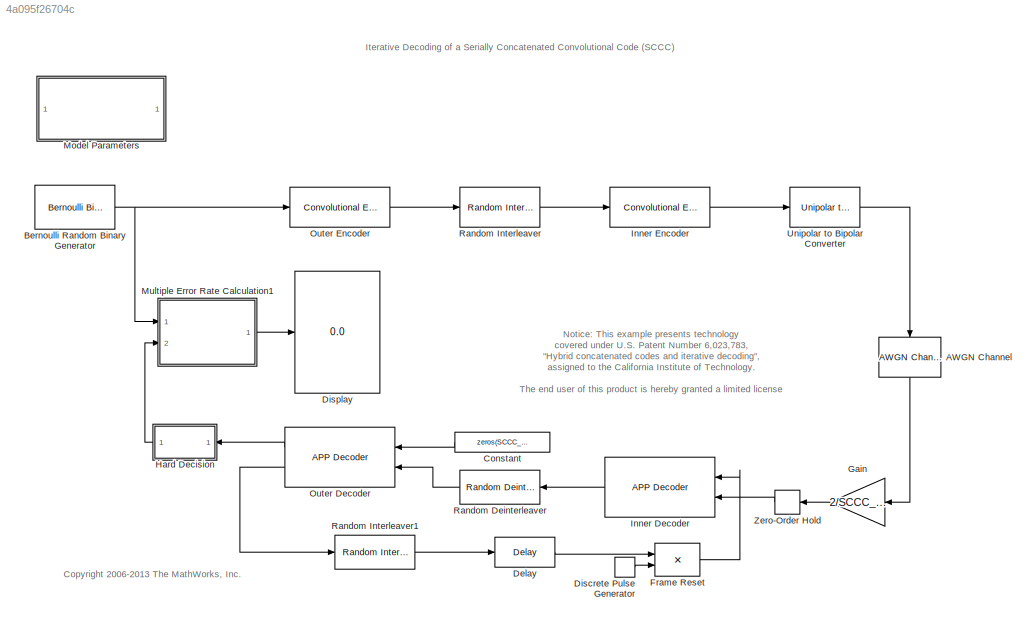
MODEL slx_4a095f26704c
KIND model
CONFIG PostLoadFcn = commsccc_setup;
BLOCK [Reference] AWGN Channel  REF=commchan3/AWGN
Channel
  EbNodB = 10
  EsNodB = 0
  InputProcessing = Columns as channels (frame based)
  Ports = [1, 1]
  Ps = 1
  SNRdB = 10
  SourceBlock = commchan3/AWGN\nChannel
  SourceType = AWGN Channel
  Tsym = 1/len/3
  UserDataPersistent = on
  bitsPerSym = 1
  noiseMode = Variance from mask
  seed = 123449
  variance = SCCC_Var
BLOCK [Reference] Bernoulli Random Binary Generator  REF=commrandsrc2/Bernoulli Binary
Generator
  P = 0.5
  Ports = [0, 1]
  SourceBlock = commrandsrc2/Bernoulli Binary\nGenerator
  SourceType = Bernoulli Binary Generator
  Ts = SCCC_numIter/SCCC_len
  frameBased = on
  orient = off
  outDataType = boolean
  sampPerFrame = SCCC_len
  seed = 12343
BLOCK [Constant] Constant
  FramePeriod = 1
  SamplingMode = Frame based
  Value = zeros(SCCC_len,1)
  VectorParams1D = off
BLOCK [Reference] Delay  REF=dspsigops/Delay
  InputProcessing = Columns as channels (frame based)
  Ports = [1, 1]
  SourceBlock = dspsigops/Delay
  SourceType = Delay
  UserDataPersistent = on
  delay = SCCC_len*2
  dif_ic_for_ch = off
  dif_ic_for_dly = off
  dly_unit = Samples
  ic = 0
  ic_detail = off
  reset_popup = None
BLOCK [DiscretePulseGenerator] Discrete Pulse Generator
  Period = SCCC_numIter
  PhaseDelay = 1
  Ports = [0, 1]
  PulseWidth = SCCC_numIter-1
BLOCK [Display] Display
  Decimation = 1
  Ports = [1]
BLOCK [Product] Frame Reset
  Ports = [2, 1]
  RndMeth = Floor
BLOCK [Gain] Gain
  Gain = 2/SCCC_Var
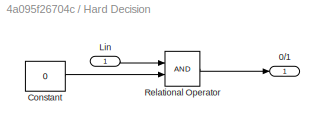
BLOCK [SubSystem] Hard Decision
  Ports = [1, 1]
  RequestExecContextInheritance = off
BLOCK [Outport] Hard Decision/0//1
  IconDisplay = Port number
BLOCK [Constant] Hard Decision/Constant
  Value = 0
BLOCK [Inport] Hard Decision/Lin
  IconDisplay = Port number
BLOCK [RelationalOperator] Hard Decision/Relational Operator
  Ports = [2, 1]
BLOCK [Reference] Inner Decoder  REF=commcnvcod2/APP Decoder
  Ports = [2, 1]
  SourceBlock = commcnvcod2/APP Decoder
  SourceType = APP Decoder
  algorithm = Max*
  disableLcOut = on
  maxStarNumScaleBits = 3
  termMethod = Truncated
  trellis = poly2trellis([3 3],[7 0 5;0 7 6],[7 7])
BLOCK [Reference] Inner Encoder  REF=commcnvcod2/Convolutional
Encoder
  DelayedResetAction = off
  Ports = [1, 1]
  SourceBlock = commcnvcod2/Convolutional\nEncoder
  SourceType = Convolutional Encoder
  hasFinStPort = off
  hasIniStPort = off
  opMode = Truncated (reset every frame)
  punctureVector = [1; 1; 0; 1; 0; 1]
  reset = Unused parameter value
  trellis = poly2trellis([3 3],[7 0 5;0 7 6],[7 7])
  usePuncVector = off
BLOCK [SubSystem] Model Parameters
  Ports = []
  RequestExecContextInheritance = off
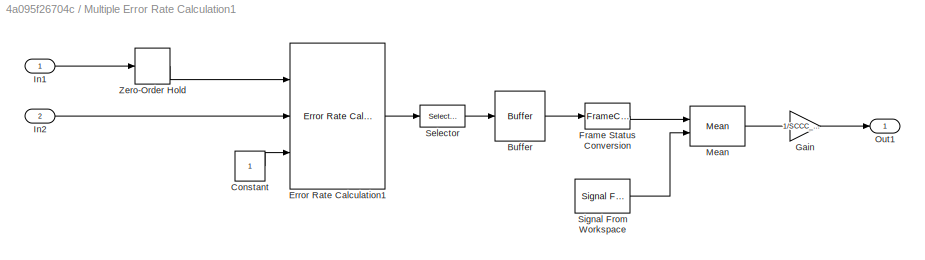
BLOCK [SubSystem] Multiple Error Rate Calculation1
  Ports = [2, 1]
  RequestExecContextInheritance = off
BLOCK [Buffer] Multiple Error Rate Calculation1/Buffer
  N = SCCC_numIter
  TreatMby1Signals = One channel
BLOCK [Constant] Multiple Error Rate Calculation1/Constant
BLOCK [Reference] Multiple Error Rate Calculation1/Error Rate Calculation1  REF=commsink2/Error Rate
Calculation
  N = 0
  PMode = Port
  Ports = [3, 1]
  RsMode2 = on
  SourceBlock = commsink2/Error Rate\nCalculation
  SourceType = Error Rate Calculation
  WsName = ErrorVec1
  cp_mode = Entire frame
  maxBits = 1e6
  numErr = 100
  st_delay = 0
  stop = off
  subframe = []
BLOCK [FrameConversion] Multiple Error Rate Calculation1/Frame Status Conversion
  OutFrame = Sample-based
  Ports = [1, 1]
BLOCK [Gain] Multiple Error Rate Calculation1/Gain
  Gain = 1/SCCC_len
BLOCK [Inport] Multiple Error Rate Calculation1/In1
  IconDisplay = Port number
BLOCK [Inport] Multiple Error Rate Calculation1/In2
  IconDisplay = Port number
  Port = 2
BLOCK [Reference] Multiple Error Rate Calculation1/Mean  REF=dspstat3/Mean
  InputProcessing = Elements as channels (sample based)
  LockScale = off
  Ports = [2, 1]
  SourceBlock = dspstat3/Mean
  SourceType = Mean
  UserDataPersistent = on
  accumDataTypeStr = Inherit: Same as input
  accumFracLength = 30
  accumLastDataTypeStr = Inherit: Same as input
  accumMode = Same as input
  accumWordLength = 32
  additionalParams = off
  allowOverrides = on
  dimension = 1
  directionMode = Each column
  outputDataTypeStr = Inherit: Same as accumulator
  outputFracLength = 30
  outputLastDataTypeStr = Inherit: Same as accumulator
  outputMax = []
  outputMin = []
  outputMode = Same as accumulator
  outputWordLength = 32
  overflowMode = off
  reset_popup = Non-zero sample
  roiEnable = off
  roiFlag = off
  roiOutput = Individual statistics for each ROI
  roiPortion = Entire ROI
  roiType = Rectangles
  roundingMode = Floor
  run = on
  treatSBRowAsCol = on
BLOCK [Outport] Multiple Error Rate Calculation1/Out1
  IconDisplay = Port number
BLOCK [Selector] Multiple Error Rate Calculation1/Selector
  Indices = 2
  InputPortWidth = 3
  Ports = [1, 1]
BLOCK [Reference] Multiple Error Rate Calculation1/Signal From Workspace  REF=dspsrcs4/Signal From
Workspace
  OutputAfterFinalValue = Setting to zero
  Ports = [0, 1]
  SourceBlock = dspsrcs4/Signal From\nWorkspace
  SourceType = Signal From Workspace
  Ts = SCCC_numIter
  X = [1 1]
  ignoreOrWarnInputAndFrameLengths = off
  nsamps = 1
BLOCK [ZeroOrderHold] Multiple Error Rate Calculation1/Zero-Order Hold
BLOCK [Reference] Outer Decoder  REF=commcnvcod2/APP Decoder
  Ports = [2, 2]
  SourceBlock = commcnvcod2/APP Decoder
  SourceType = APP Decoder
  algorithm = Max*
  disableLcOut = off
  maxStarNumScaleBits = 3
  termMethod = Truncated
  trellis = poly2trellis(3, [7 5],7)
BLOCK [Reference] Outer Encoder  REF=commcnvcod2/Convolutional
Encoder
  DelayedResetAction = off
  Ports = [1, 1]
  SourceBlock = commcnvcod2/Convolutional\nEncoder
  SourceType = Convolutional Encoder
  hasFinStPort = off
  hasIniStPort = off
  opMode = Truncated (reset every frame)
  punctureVector = [1; 1; 0; 1; 0; 1]
  reset = Unused parameter value
  trellis = poly2trellis(3, [7 5],7)
  usePuncVector = off
BLOCK [Reference] Random Deinterleaver  REF=commblkintrlv2/Random
Deinterleaver
  N = SCCC_len*2
  Ports = [1, 1]
  SourceBlock = commblkintrlv2/Random\nDeinterleaver
  SourceType = Random Deinterleaver
  seed = SCCC_seed
BLOCK [Reference] Random Interleaver  REF=commblkintrlv2/Random
Interleaver
  N = SCCC_len*2
  Ports = [1, 1]
  SourceBlock = commblkintrlv2/Random\nInterleaver
  SourceType = Random Interleaver
  seed = SCCC_seed
BLOCK [Reference] Random Interleaver1  REF=commblkintrlv2/Random
Interleaver
  N = SCCC_len*2
  Ports = [1, 1]
  SourceBlock = commblkintrlv2/Random\nInterleaver
  SourceType = Random Interleaver
  seed = SCCC_seed
BLOCK [Reference] Unipolar to Bipolar Converter  REF=commutil2/Unipolar to
Bipolar
Converter
  M = 2
  Ports = [1, 1]
  SourceBlock = commutil2/Unipolar to\nBipolar\nConverter
  SourceType = Unipolar to Bipolar Converter
  dataType = double
  polarity = Positive
BLOCK [ZeroOrderHold] Zero-Order Hold
  SampleTime = SCCC_numIter
ANNOTATION (root): <copyright redacted>
ANNOTATION (root): Iterative Decoding of a Serially Concatenated Convolutional Code (SCCC)
ANNOTATION (root): Notice: This example presents technology covered under U.S. Patent Number 6,023,783, "Hybrid concatenated codes and iterative decoding", assigned to the California Institute of Technology. The end user of this product is hereby granted a limited license to use this example solely for the purpose of assessing possible commercial and educational applications of the technology. Any other use or modif...<+80ch>
LINE AWGN Channel:1 -> Gain:1
NET Bernoulli Random Binary Generator:1 -> Multiple Error Rate Calculation1:1, Outer Encoder:1
LINE Constant:1 -> Outer Decoder:1
LINE Delay:1 -> Frame Reset:1
LINE Discrete Pulse Generator:1 -> Frame Reset:2
LINE Frame Reset:1 -> Inner Decoder:1
LINE Gain:1 -> Zero-Order Hold:1
LINE Hard Decision/Constant:1 -> Hard Decision/Relational Operator:2
LINE Hard Decision/Lin:1 -> Hard Decision/Relational Operator:1
LINE Hard Decision/Relational Operator:1 -> Hard Decision/0//1:1
LINE Hard Decision:1 -> Multiple Error Rate Calculation1:2
LINE Inner Decoder:1 -> Random Deinterleaver:1
LINE Inner Encoder:1 -> Unipolar to Bipolar Converter:1
LINE Multiple Error Rate Calculation1/Buffer:1 -> Multiple Error Rate Calculation1/Frame Status Conversion:1
LINE Multiple Error Rate Calculation1/Constant:1 -> Multiple Error Rate Calculation1/Error Rate Calculation1:3
LINE Multiple Error Rate Calculation1/Error Rate Calculation1:1 -> Multiple Error Rate Calculation1/Selector:1
LINE Multiple Error Rate Calculation1/Frame Status Conversion:1 -> Multiple Error Rate Calculation1/Mean:1
LINE Multiple Error Rate Calculation1/Gain:1 -> Multiple Error Rate Calculation1/Out1:1
LINE Multiple Error Rate Calculation1/In1:1 -> Multiple Error Rate Calculation1/Zero-Order Hold:1
LINE Multiple Error Rate Calculation1/In2:1 -> Multiple Error Rate Calculation1/Error Rate Calculation1:2
LINE Multiple Error Rate Calculation1/Mean:1 -> Multiple Error Rate Calculation1/Gain:1
LINE Multiple Error Rate Calculation1/Selector:1 -> Multiple Error Rate Calculation1/Buffer:1
LINE Multiple Error Rate Calculation1/Signal From Workspace:1 -> Multiple Error Rate Calculation1/Mean:2
LINE Multiple Error Rate Calculation1/Zero-Order Hold:1 -> Multiple Error Rate Calculation1/Error Rate Calculation1:1
LINE Multiple Error Rate Calculation1:1 -> Display:1
LINE Outer Decoder:1 -> Hard Decision:1
LINE Outer Decoder:2 -> Random Interleaver1:1
LINE Outer Encoder:1 -> Random Interleaver:1
LINE Random Deinterleaver:1 -> Outer Decoder:2
LINE Random Interleaver1:1 -> Delay:1
LINE Random Interleaver:1 -> Inner Encoder:1
LINE Unipolar to Bipolar Converter:1 -> AWGN Channel:1
LINE Zero-Order Hold:1 -> Inner Decoder:2
note: NET lines group one-source signal fan-out (src -> all destinations, sorted); 1:1 wires keep LINE
